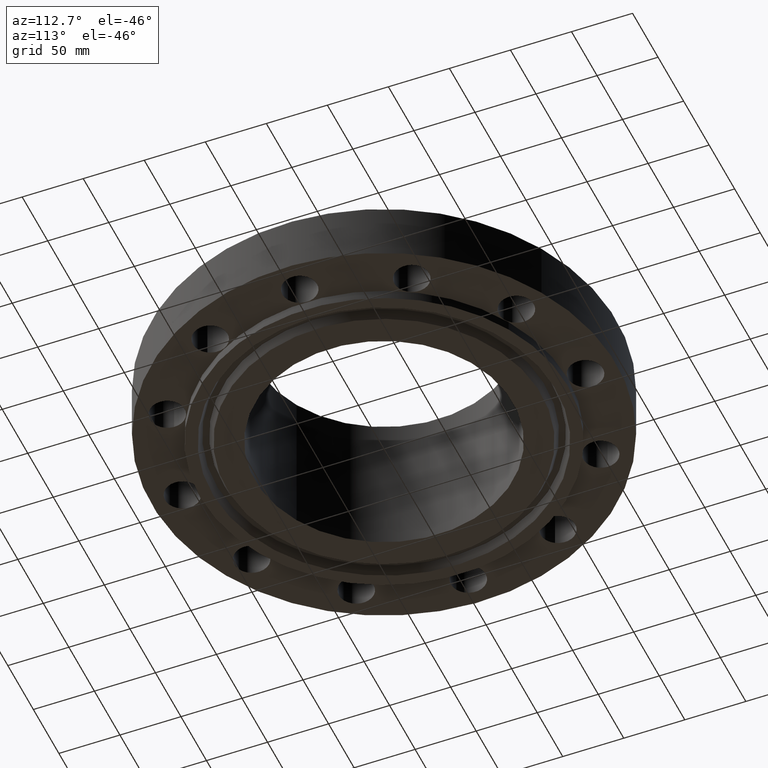
[diagram: clean part render]
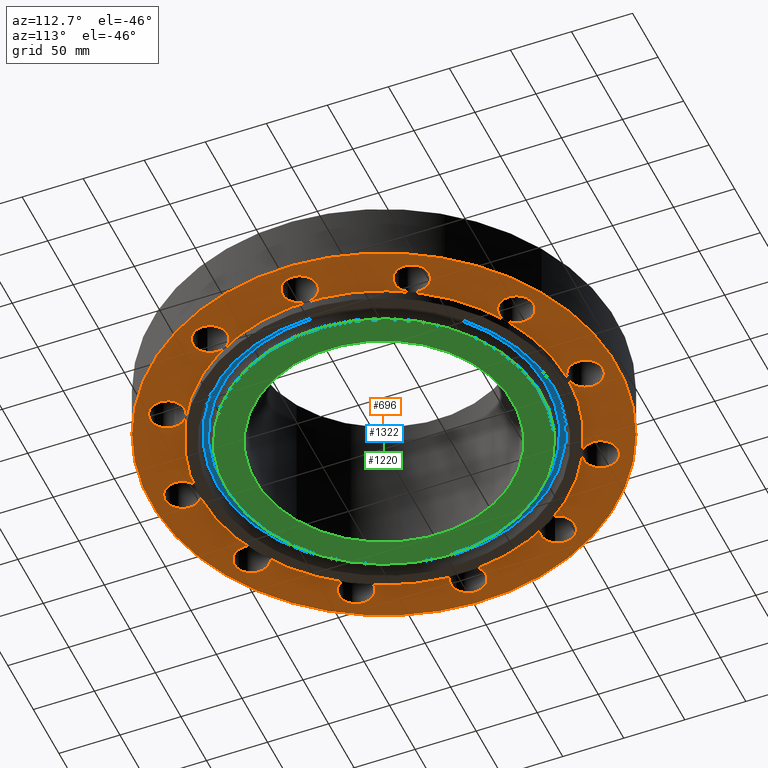
[diagram: same view with three faces highlighted in distinct colors, each labeled with its STEP entity id]
A machine part, auxiliary view with three faces highlighted in distinct colors.
Their STEP definitions:

[orange] entity #696 — the highlighted planar face has unit normal (0, 0, -1).
#51=AXIS2_PLACEMENT_3D('Circle Axis2P3D',#49,#50,$) ;
#77=AXIS2_PLACEMENT_3D('Circle Axis2P3D',#75,#76,$) ;
#99=AXIS2_PLACEMENT_3D('Circle Axis2P3D',#97,#98,$) ;
#134=AXIS2_PLACEMENT_3D('Circle Axis2P3D',#132,#133,$) ;
#447=AXIS2_PLACEMENT_3D('Circle Axis2P3D',#445,#446,$) ;
#471=AXIS2_PLACEMENT_3D('Circle Axis2P3D',#469,#470,$) ;
#484=AXIS2_PLACEMENT_3D('Plane Axis2P3D',#481,#482,#483) ;
#500=AXIS2_PLACEMENT_3D('Circle Axis2P3D',#498,#499,$) ;
#509=AXIS2_PLACEMENT_3D('Circle Axis2P3D',#507,#508,$) ;
#518=AXIS2_PLACEMENT_3D('Circle Axis2P3D',#516,#517,$) ;
#527=AXIS2_PLACEMENT_3D('Circle Axis2P3D',#525,#526,$) ;
#536=AXIS2_PLACEMENT_3D('Circle Axis2P3D',#534,#535,$) ;
#545=AXIS2_PLACEMENT_3D('Circle Axis2P3D',#543,#544,$) ;
#554=AXIS2_PLACEMENT_3D('Circle Axis2P3D',#552,#553,$) ;
#563=AXIS2_PLACEMENT_3D('Circle Axis2P3D',#561,#562,$) ;
#572=AXIS2_PLACEMENT_3D('Circle Axis2P3D',#570,#571,$) ;
#581=AXIS2_PLACEMENT_3D('Circle Axis2P3D',#579,#580,$) ;
#590=AXIS2_PLACEMENT_3D('Circle Axis2P3D',#588,#589,$) ;
#599=AXIS2_PLACEMENT_3D('Circle Axis2P3D',#597,#598,$) ;
#608=AXIS2_PLACEMENT_3D('Circle Axis2P3D',#606,#607,$) ;
#617=AXIS2_PLACEMENT_3D('Circle Axis2P3D',#615,#616,$) ;
#626=AXIS2_PLACEMENT_3D('Circle Axis2P3D',#624,#625,$) ;
#635=AXIS2_PLACEMENT_3D('Circle Axis2P3D',#633,#634,$) ;
#644=AXIS2_PLACEMENT_3D('Circle Axis2P3D',#642,#643,$) ;
#653=AXIS2_PLACEMENT_3D('Circle Axis2P3D',#651,#652,$) ;
#662=AXIS2_PLACEMENT_3D('Circle Axis2P3D',#660,#661,$) ;
#671=AXIS2_PLACEMENT_3D('Circle Axis2P3D',#669,#670,$) ;
#680=AXIS2_PLACEMENT_3D('Circle Axis2P3D',#678,#679,$) ;
#689=AXIS2_PLACEMENT_3D('Circle Axis2P3D',#687,#688,$) ;
#44=CARTESIAN_POINT('Vertex',(-0.491446234661,6.76847830165,0.)) ;
#49=CARTESIAN_POINT('Axis2P3D Location',(0.,6.50000000003,0.)) ;
#53=CARTESIAN_POINT('Vertex',(0.491446234661,6.23152169841,0.)) ;
#75=CARTESIAN_POINT('Axis2P3D Location',(0.,6.50000000003,0.)) ;
#97=CARTESIAN_POINT('Axis2P3D Location',(0.,0.,8.39223703654E-016)) ;
#101=CARTESIAN_POINT('Vertex',(-3.59569153955,-6.5818692142,8.39223703654E-016)) ;
#103=CARTESIAN_POINT('Vertex',(3.59569153955,6.5818692142,8.39223703654E-016)) ;
#132=CARTESIAN_POINT('Axis2P3D Location',(0.,0.,8.39223703654E-016)) ;
#442=CARTESIAN_POINT('Vertex',(-2.84658913547,-5.21064646124,2.79741234551E-016)) ;
#445=CARTESIAN_POINT('Axis2P3D Location',(0.,0.,5.59482469102E-016)) ;
#449=CARTESIAN_POINT('Vertex',(2.84658913547,5.21064646124,2.79741234551E-016)) ;
#469=CARTESIAN_POINT('Axis2P3D Location',(0.,0.,5.59482469102E-016)) ;
#481=CARTESIAN_POINT('Axis2P3D Location',(0.,5.93750000002,0.)) ;
#498=CARTESIAN_POINT('Axis2P3D Location',(3.25000000001,5.62916512462,0.)) ;
#502=CARTESIAN_POINT('Vertex',(2.95863422701,6.10739727152,0.)) ;
#504=CARTESIAN_POINT('Vertex',(3.54136577301,5.15093297772,0.)) ;
#507=CARTESIAN_POINT('Axis2P3D Location',(3.25000000001,5.62916512462,0.)) ;
#516=CARTESIAN_POINT('Axis2P3D Location',(5.62916512462,3.25000000001,0.)) ;
#520=CARTESIAN_POINT('Vertex',(5.61595103686,3.80984407463,0.)) ;
#522=CARTESIAN_POINT('Vertex',(5.64237921238,2.69015592539,0.)) ;
#525=CARTESIAN_POINT('Axis2P3D Location',(5.62916512462,3.25000000001,0.)) ;
#534=CARTESIAN_POINT('Axis2P3D Location',(6.50000000003,-1.1189649382E-015,0.)) ;
#538=CARTESIAN_POINT('Vertex',(6.76847830165,0.491446234661,0.)) ;
#540=CARTESIAN_POINT('Vertex',(6.23152169841,-0.491446234661,0.)) ;
#543=CARTESIAN_POINT('Axis2P3D Location',(6.50000000003,-1.1189649382E-015,0.)) ;
#552=CARTESIAN_POINT('Axis2P3D Location',(5.62916512462,-3.25000000001,0.)) ;
#556=CARTESIAN_POINT('Vertex',(6.10739727152,-2.95863422701,0.)) ;
#558=CARTESIAN_POINT('Vertex',(5.15093297772,-3.54136577301,-1.67844740731E-015)) ;
#561=CARTESIAN_POINT('Axis2P3D Location',(5.62916512462,-3.25000000001,0.)) ;
#570=CARTESIAN_POINT('Axis2P3D Location',(3.25000000001,-5.62916512462,0.)) ;
#574=CARTESIAN_POINT('Vertex',(3.80984407463,-5.61595103686,0.)) ;
#576=CARTESIAN_POINT('Vertex',(2.69015592539,-5.64237921238,0.)) ;
#579=CARTESIAN_POINT('Axis2P3D Location',(3.25000000001,-5.62916512462,0.)) ;
#588=CARTESIAN_POINT('Axis2P3D Location',(7.34320740697E-016,-6.50000000003,0.)) ;
#592=CARTESIAN_POINT('Vertex',(0.491446234661,-6.76847830165,0.)) ;
#594=CARTESIAN_POINT('Vertex',(-0.491446234661,-6.23152169841,0.)) ;
#597=CARTESIAN_POINT('Axis2P3D Location',(8.21739876494E-016,-6.50000000003,0.)) ;
#606=CARTESIAN_POINT('Axis2P3D Location',(-3.25000000001,-5.62916512462,0.)) ;
#610=CARTESIAN_POINT('Vertex',(-2.95863422701,-6.10739727152,0.)) ;
#612=CARTESIAN_POINT('Vertex',(-3.54136577301,-5.15093297772,0.)) ;
#615=CARTESIAN_POINT('Axis2P3D Location',(-3.25000000001,-5.62916512462,0.)) ;
#624=CARTESIAN_POINT('Axis2P3D Location',(-5.62916512462,-3.25000000001,0.)) ;
#628=CARTESIAN_POINT('Vertex',(-5.61595103686,-3.80984407463,0.)) ;
#630=CARTESIAN_POINT('Vertex',(-5.64237921238,-2.69015592539,0.)) ;
#633=CARTESIAN_POINT('Axis2P3D Location',(-5.62916512462,-3.25000000001,0.)) ;
#642=CARTESIAN_POINT('Axis2P3D Location',(-6.50000000003,-1.1189649382E-015,0.)) ;
#646=CARTESIAN_POINT('Vertex',(-6.76847830165,-0.491446234661,0.)) ;
#648=CARTESIAN_POINT('Vertex',(-6.23152169841,0.491446234661,0.)) ;
#651=CARTESIAN_POINT('Axis2P3D Location',(-6.50000000003,-1.1189649382E-015,0.)) ;
#660=CARTESIAN_POINT('Axis2P3D Location',(-5.62916512462,3.25000000001,0.)) ;
#664=CARTESIAN_POINT('Vertex',(-6.10739727152,2.95863422701,0.)) ;
#666=CARTESIAN_POINT('Vertex',(-5.15093297772,3.54136577301,0.)) ;
#669=CARTESIAN_POINT('Axis2P3D Location',(-5.62916512462,3.25000000001,0.)) ;
#678=CARTESIAN_POINT('Axis2P3D Location',(-3.25000000001,5.62916512462,0.)) ;
#682=CARTESIAN_POINT('Vertex',(-3.80984407463,5.61595103686,0.)) ;
#684=CARTESIAN_POINT('Vertex',(-2.69015592539,5.64237921238,0.)) ;
#687=CARTESIAN_POINT('Axis2P3D Location',(-3.25000000001,5.62916512462,0.)) ;
#50=DIRECTION('Axis2P3D Direction',(0.,-0.,-0.0393700787402)) ;
#76=DIRECTION('Axis2P3D Direction',(0.,-0.,-0.0393700787402)) ;
#98=DIRECTION('Axis2P3D Direction',(0.,0.,-0.0393700787402)) ;
#133=DIRECTION('Axis2P3D Direction',(0.,0.,-0.0393700787402)) ;
#446=DIRECTION('Axis2P3D Direction',(0.,0.,-0.0393700787402)) ;
#470=DIRECTION('Axis2P3D Direction',(0.,0.,-0.0393700787402)) ;
#482=DIRECTION('Axis2P3D Direction',(0.,0.,-0.0393700787402)) ;
#483=DIRECTION('Axis2P3D XDirection',(0.0393700787402,0.,0.)) ;
#499=DIRECTION('Axis2P3D Direction',(0.,0.,-0.0393700787402)) ;
#508=DIRECTION('Axis2P3D Direction',(0.,0.,-0.0393700787402)) ;
#517=DIRECTION('Axis2P3D Direction',(0.,0.,-0.0393700787402)) ;
#526=DIRECTION('Axis2P3D Direction',(0.,0.,-0.0393700787402)) ;
#535=DIRECTION('Axis2P3D Direction',(0.,0.,-0.0393700787402)) ;
#544=DIRECTION('Axis2P3D Direction',(0.,0.,-0.0393700787402)) ;
#553=DIRECTION('Axis2P3D Direction',(0.,0.,-0.0393700787402)) ;
#562=DIRECTION('Axis2P3D Direction',(0.,0.,-0.0393700787402)) ;
#571=DIRECTION('Axis2P3D Direction',(0.,0.,-0.0393700787402)) ;
#580=DIRECTION('Axis2P3D Direction',(0.,0.,-0.0393700787402)) ;
#589=DIRECTION('Axis2P3D Direction',(0.,0.,-0.0393700787402)) ;
#598=DIRECTION('Axis2P3D Direction',(0.,0.,-0.0393700787402)) ;
#607=DIRECTION('Axis2P3D Direction',(0.,0.,-0.0393700787402)) ;
#616=DIRECTION('Axis2P3D Direction',(0.,0.,-0.0393700787402)) ;
#625=DIRECTION('Axis2P3D Direction',(0.,0.,-0.0393700787402)) ;
#634=DIRECTION('Axis2P3D Direction',(0.,0.,-0.0393700787402)) ;
#643=DIRECTION('Axis2P3D Direction',(0.,0.,-0.0393700787402)) ;
#652=DIRECTION('Axis2P3D Direction',(0.,0.,-0.0393700787402)) ;
#661=DIRECTION('Axis2P3D Direction',(0.,0.,-0.0393700787402)) ;
#670=DIRECTION('Axis2P3D Direction',(0.,0.,-0.0393700787402)) ;
#679=DIRECTION('Axis2P3D Direction',(0.,0.,-0.0393700787402)) ;
#688=DIRECTION('Axis2P3D Direction',(0.,0.,-0.0393700787402)) ;
#487=ORIENTED_EDGE('',*,*,#105,.T.) ;
#488=ORIENTED_EDGE('',*,*,#136,.T.) ;
#491=ORIENTED_EDGE('',*,*,#79,.F.) ;
#492=ORIENTED_EDGE('',*,*,#55,.F.) ;
#495=ORIENTED_EDGE('',*,*,#473,.F.) ;
#496=ORIENTED_EDGE('',*,*,#451,.F.) ;
#513=ORIENTED_EDGE('',*,*,#506,.F.) ;
#514=ORIENTED_EDGE('',*,*,#511,.F.) ;
#531=ORIENTED_EDGE('',*,*,#524,.F.) ;
#532=ORIENTED_EDGE('',*,*,#529,.F.) ;
#549=ORIENTED_EDGE('',*,*,#542,.F.) ;
#550=ORIENTED_EDGE('',*,*,#547,.F.) ;
#567=ORIENTED_EDGE('',*,*,#560,.F.) ;
#568=ORIENTED_EDGE('',*,*,#565,.F.) ;
#585=ORIENTED_EDGE('',*,*,#578,.F.) ;
#586=ORIENTED_EDGE('',*,*,#583,.F.) ;
#603=ORIENTED_EDGE('',*,*,#596,.F.) ;
#604=ORIENTED_EDGE('',*,*,#601,.F.) ;
#621=ORIENTED_EDGE('',*,*,#614,.F.) ;
#622=ORIENTED_EDGE('',*,*,#619,.F.) ;
#639=ORIENTED_EDGE('',*,*,#632,.F.) ;
#640=ORIENTED_EDGE('',*,*,#637,.F.) ;
#657=ORIENTED_EDGE('',*,*,#650,.F.) ;
#658=ORIENTED_EDGE('',*,*,#655,.F.) ;
#675=ORIENTED_EDGE('',*,*,#668,.F.) ;
#676=ORIENTED_EDGE('',*,*,#673,.F.) ;
#693=ORIENTED_EDGE('',*,*,#686,.F.) ;
#694=ORIENTED_EDGE('',*,*,#691,.F.) ;
#493=FACE_BOUND('',#490,.T.) ;
#497=FACE_BOUND('',#494,.T.) ;
#515=FACE_BOUND('',#512,.T.) ;
#533=FACE_BOUND('',#530,.T.) ;
#551=FACE_BOUND('',#548,.T.) ;
#569=FACE_BOUND('',#566,.T.) ;
#587=FACE_BOUND('',#584,.T.) ;
#605=FACE_BOUND('',#602,.T.) ;
#623=FACE_BOUND('',#620,.T.) ;
#641=FACE_BOUND('',#638,.T.) ;
#659=FACE_BOUND('',#656,.T.) ;
#677=FACE_BOUND('',#674,.T.) ;
#695=FACE_BOUND('',#692,.T.) ;
#696=ADVANCED_FACE('PartBody',(#489,#493,#497,#515,#533,#551,#569,#587,#605,#623,#641,#659,#677,#695),#485,.T.) ;
#52=CIRCLE('generated circle',#51,0.560000000002) ;
#78=CIRCLE('generated circle',#77,0.560000000002) ;
#100=CIRCLE('generated circle',#99,7.50000000003) ;
#135=CIRCLE('generated circle',#134,7.50000000003) ;
#448=CIRCLE('generated circle',#447,5.93750000002) ;
#472=CIRCLE('generated circle',#471,5.93750000002) ;
#501=CIRCLE('generated circle',#500,0.560000000002) ;
#510=CIRCLE('generated circle',#509,0.560000000002) ;
#519=CIRCLE('generated circle',#518,0.560000000002) ;
#528=CIRCLE('generated circle',#527,0.560000000002) ;
#537=CIRCLE('generated circle',#536,0.560000000002) ;
#546=CIRCLE('generated circle',#545,0.560000000002) ;
#555=CIRCLE('generated circle',#554,0.560000000002) ;
#564=CIRCLE('generated circle',#563,0.560000000002) ;
#573=CIRCLE('generated circle',#572,0.560000000002) ;
#582=CIRCLE('generated circle',#581,0.560000000002) ;
#591=CIRCLE('generated circle',#590,0.560000000002) ;
#600=CIRCLE('generated circle',#599,0.560000000002) ;
#609=CIRCLE('generated circle',#608,0.560000000002) ;
#618=CIRCLE('generated circle',#617,0.560000000002) ;
#627=CIRCLE('generated circle',#626,0.560000000002) ;
#636=CIRCLE('generated circle',#635,0.560000000002) ;
#645=CIRCLE('generated circle',#644,0.560000000002) ;
#654=CIRCLE('generated circle',#653,0.560000000002) ;
#663=CIRCLE('generated circle',#662,0.560000000002) ;
#672=CIRCLE('generated circle',#671,0.560000000002) ;
#681=CIRCLE('generated circle',#680,0.560000000002) ;
#690=CIRCLE('generated circle',#689,0.560000000002) ;
#55=EDGE_CURVE('',#45,#54,#52,.T.) ;
#79=EDGE_CURVE('',#54,#45,#78,.T.) ;
#105=EDGE_CURVE('',#102,#104,#100,.T.) ;
#136=EDGE_CURVE('',#104,#102,#135,.T.) ;
#451=EDGE_CURVE('',#443,#450,#448,.T.) ;
#473=EDGE_CURVE('',#450,#443,#472,.T.) ;
#506=EDGE_CURVE('',#503,#505,#501,.T.) ;
#511=EDGE_CURVE('',#505,#503,#510,.T.) ;
#524=EDGE_CURVE('',#521,#523,#519,.T.) ;
#529=EDGE_CURVE('',#523,#521,#528,.T.) ;
#542=EDGE_CURVE('',#539,#541,#537,.T.) ;
#547=EDGE_CURVE('',#541,#539,#546,.T.) ;
#560=EDGE_CURVE('',#557,#559,#555,.T.) ;
#565=EDGE_CURVE('',#559,#557,#564,.T.) ;
#578=EDGE_CURVE('',#575,#577,#573,.T.) ;
#583=EDGE_CURVE('',#577,#575,#582,.T.) ;
#596=EDGE_CURVE('',#593,#595,#591,.T.) ;
#601=EDGE_CURVE('',#595,#593,#600,.T.) ;
#614=EDGE_CURVE('',#611,#613,#609,.T.) ;
#619=EDGE_CURVE('',#613,#611,#618,.T.) ;
#632=EDGE_CURVE('',#629,#631,#627,.T.) ;
#637=EDGE_CURVE('',#631,#629,#636,.T.) ;
#650=EDGE_CURVE('',#647,#649,#645,.T.) ;
#655=EDGE_CURVE('',#649,#647,#654,.T.) ;
#668=EDGE_CURVE('',#665,#667,#663,.T.) ;
#673=EDGE_CURVE('',#667,#665,#672,.T.) ;
#686=EDGE_CURVE('',#683,#685,#681,.T.) ;
#691=EDGE_CURVE('',#685,#683,#690,.T.) ;
#486=EDGE_LOOP('',(#487,#488)) ;
#490=EDGE_LOOP('',(#491,#492)) ;
#494=EDGE_LOOP('',(#495,#496)) ;
#512=EDGE_LOOP('',(#513,#514)) ;
#530=EDGE_LOOP('',(#531,#532)) ;
#548=EDGE_LOOP('',(#549,#550)) ;
#566=EDGE_LOOP('',(#567,#568)) ;
#584=EDGE_LOOP('',(#585,#586)) ;
#602=EDGE_LOOP('',(#603,#604)) ;
#620=EDGE_LOOP('',(#621,#622)) ;
#638=EDGE_LOOP('',(#639,#640)) ;
#656=EDGE_LOOP('',(#657,#658)) ;
#674=EDGE_LOOP('',(#675,#676)) ;
#692=EDGE_LOOP('',(#693,#694)) ;
#489=FACE_OUTER_BOUND('',#486,.T.) ;
#485=PLANE('',#484) ;
#45=VERTEX_POINT('',#44) ;
#54=VERTEX_POINT('',#53) ;
#102=VERTEX_POINT('',#101) ;
#104=VERTEX_POINT('',#103) ;
#443=VERTEX_POINT('',#442) ;
#450=VERTEX_POINT('',#449) ;
#503=VERTEX_POINT('',#502) ;
#505=VERTEX_POINT('',#504) ;
#521=VERTEX_POINT('',#520) ;
#523=VERTEX_POINT('',#522) ;
#539=VERTEX_POINT('',#538) ;
#541=VERTEX_POINT('',#540) ;
#557=VERTEX_POINT('',#556) ;
#559=VERTEX_POINT('',#558) ;
#575=VERTEX_POINT('',#574) ;
#577=VERTEX_POINT('',#576) ;
#593=VERTEX_POINT('',#592) ;
#595=VERTEX_POINT('',#594) ;
#611=VERTEX_POINT('',#610) ;
#613=VERTEX_POINT('',#612) ;
#629=VERTEX_POINT('',#628) ;
#631=VERTEX_POINT('',#630) ;
#647=VERTEX_POINT('',#646) ;
#649=VERTEX_POINT('',#648) ;
#665=VERTEX_POINT('',#664) ;
#667=VERTEX_POINT('',#666) ;
#683=VERTEX_POINT('',#682) ;
#685=VERTEX_POINT('',#684) ;

[blue] entity #1322 — the highlighted planar face has unit normal (0, 0, -1).
#484=AXIS2_PLACEMENT_3D('Plane Axis2P3D',#481,#482,#483) ;
#1244=AXIS2_PLACEMENT_3D('Circle Axis2P3D',#1242,#1243,$) ;
#1290=AXIS2_PLACEMENT_3D('Circle Axis2P3D',#1288,#1289,$) ;
#1306=AXIS2_PLACEMENT_3D('Circle Axis2P3D',#1304,#1305,$) ;
#1315=AXIS2_PLACEMENT_3D('Circle Axis2P3D',#1313,#1314,$) ;
#481=CARTESIAN_POINT('Axis2P3D Location',(0.,5.93750000002,0.)) ;
#1239=CARTESIAN_POINT('Vertex',(-2.58583961946,4.73334767375,-3.89015154298E-016)) ;
#1242=CARTESIAN_POINT('Axis2P3D Location',(0.,0.,-3.89015154298E-016)) ;
#1246=CARTESIAN_POINT('Vertex',(2.58583961946,-4.73334767375,-3.89015154298E-016)) ;
#1288=CARTESIAN_POINT('Axis2P3D Location',(0.,0.,-3.89015154298E-016)) ;
#1304=CARTESIAN_POINT('Axis2P3D Location',(0.,0.,0.)) ;
#1308=CARTESIAN_POINT('Vertex',(2.50805672823,-4.59096704638,2.27289753073E-016)) ;
#1310=CARTESIAN_POINT('Vertex',(-2.50805672823,4.59096704638,2.27289753073E-016)) ;
#1313=CARTESIAN_POINT('Axis2P3D Location',(0.,0.,0.)) ;
#482=DIRECTION('Axis2P3D Direction',(0.,0.,-0.0393700787402)) ;
#483=DIRECTION('Axis2P3D XDirection',(0.0393700787402,0.,0.)) ;
#1243=DIRECTION('Axis2P3D Direction',(0.,0.,0.0393700787402)) ;
#1289=DIRECTION('Axis2P3D Direction',(0.,0.,0.0393700787402)) ;
#1305=DIRECTION('Axis2P3D Direction',(0.,0.,-0.0393700787402)) ;
#1314=DIRECTION('Axis2P3D Direction',(0.,0.,-0.0393700787402)) ;
#1301=ORIENTED_EDGE('',*,*,#1248,.F.) ;
#1302=ORIENTED_EDGE('',*,*,#1292,.F.) ;
#1319=ORIENTED_EDGE('',*,*,#1312,.T.) ;
#1320=ORIENTED_EDGE('',*,*,#1317,.T.) ;
#1321=FACE_BOUND('',#1318,.T.) ;
#1322=ADVANCED_FACE('PartBody',(#1303,#1321),#485,.T.) ;
#1245=CIRCLE('generated circle',#1244,5.39362093015) ;
#1291=CIRCLE('generated circle',#1290,5.39362093015) ;
#1307=CIRCLE('generated circle',#1306,5.23137906989) ;
#1316=CIRCLE('generated circle',#1315,5.23137906989) ;
#1248=EDGE_CURVE('',#1240,#1247,#1245,.T.) ;
#1292=EDGE_CURVE('',#1247,#1240,#1291,.T.) ;
#1312=EDGE_CURVE('',#1309,#1311,#1307,.F.) ;
#1317=EDGE_CURVE('',#1311,#1309,#1316,.F.) ;
#1300=EDGE_LOOP('',(#1301,#1302)) ;
#1318=EDGE_LOOP('',(#1319,#1320)) ;
#1303=FACE_OUTER_BOUND('',#1300,.T.) ;
#485=PLANE('',#484) ;
#1240=VERTEX_POINT('',#1239) ;
#1247=VERTEX_POINT('',#1246) ;
#1309=VERTEX_POINT('',#1308) ;
#1311=VERTEX_POINT('',#1310) ;

[green] entity #1220 — the highlighted planar face has unit normal (0, 0, -1).
#363=AXIS2_PLACEMENT_3D('Circle Axis2P3D',#361,#362,$) ;
#387=AXIS2_PLACEMENT_3D('Circle Axis2P3D',#385,#386,$) ;
#1173=AXIS2_PLACEMENT_3D('Plane Axis2P3D',#1170,#1171,#1172) ;
#1200=AXIS2_PLACEMENT_3D('Circle Axis2P3D',#1198,#1199,$) ;
#1209=AXIS2_PLACEMENT_3D('Circle Axis2P3D',#1207,#1208,$) ;
#358=CARTESIAN_POINT('Vertex',(1.99656765553,3.65469257901,-0.313000000001)) ;
#361=CARTESIAN_POINT('Axis2P3D Location',(0.,0.,-0.313000000001)) ;
#365=CARTESIAN_POINT('Vertex',(-1.99656765553,-3.65469257901,-0.313000000001)) ;
#385=CARTESIAN_POINT('Axis2P3D Location',(0.,0.,-0.313000000001)) ;
#1170=CARTESIAN_POINT('Axis2P3D Location',(0.,4.16450000002,-0.313000000001)) ;
#1198=CARTESIAN_POINT('Axis2P3D Location',(5.59482469102E-016,5.59482469102E-016,-0.313000000001)) ;
#1202=CARTESIAN_POINT('Vertex',(-2.43452288504,4.4563642493,-0.313000000001)) ;
#1204=CARTESIAN_POINT('Vertex',(2.43452288504,-4.4563642493,-0.313000000001)) ;
#1207=CARTESIAN_POINT('Axis2P3D Location',(-1.1189649382E-015,0.,-0.313000000001)) ;
#362=DIRECTION('Axis2P3D Direction',(0.,0.,-0.0393700787402)) ;
#386=DIRECTION('Axis2P3D Direction',(0.,0.,-0.0393700787402)) ;
#1171=DIRECTION('Axis2P3D Direction',(0.,0.,-0.0393700787402)) ;
#1172=DIRECTION('Axis2P3D XDirection',(0.0393700787402,0.,0.)) ;
#1199=DIRECTION('Axis2P3D Direction',(0.,0.,-0.0393700787402)) ;
#1208=DIRECTION('Axis2P3D Direction',(0.,0.,-0.0393700787402)) ;
#1213=ORIENTED_EDGE('',*,*,#1206,.T.) ;
#1214=ORIENTED_EDGE('',*,*,#1211,.T.) ;
#1217=ORIENTED_EDGE('',*,*,#367,.F.) ;
#1218=ORIENTED_EDGE('',*,*,#389,.F.) ;
#1219=FACE_BOUND('',#1216,.T.) ;
#1220=ADVANCED_FACE('PartBody',(#1215,#1219),#1174,.T.) ;
#364=CIRCLE('generated circle',#363,4.16450000002) ;
#388=CIRCLE('generated circle',#387,4.16450000002) ;
#1201=CIRCLE('generated circle',#1200,5.07800000002) ;
#1210=CIRCLE('generated circle',#1209,5.07800000002) ;
#367=EDGE_CURVE('',#359,#366,#364,.T.) ;
#389=EDGE_CURVE('',#366,#359,#388,.T.) ;
#1206=EDGE_CURVE('',#1203,#1205,#1201,.T.) ;
#1211=EDGE_CURVE('',#1205,#1203,#1210,.T.) ;
#1212=EDGE_LOOP('',(#1213,#1214)) ;
#1216=EDGE_LOOP('',(#1217,#1218)) ;
#1215=FACE_OUTER_BOUND('',#1212,.T.) ;
#1174=PLANE('',#1173) ;
#359=VERTEX_POINT('',#358) ;
#366=VERTEX_POINT('',#365) ;
#1203=VERTEX_POINT('',#1202) ;
#1205=VERTEX_POINT('',#1204) ;